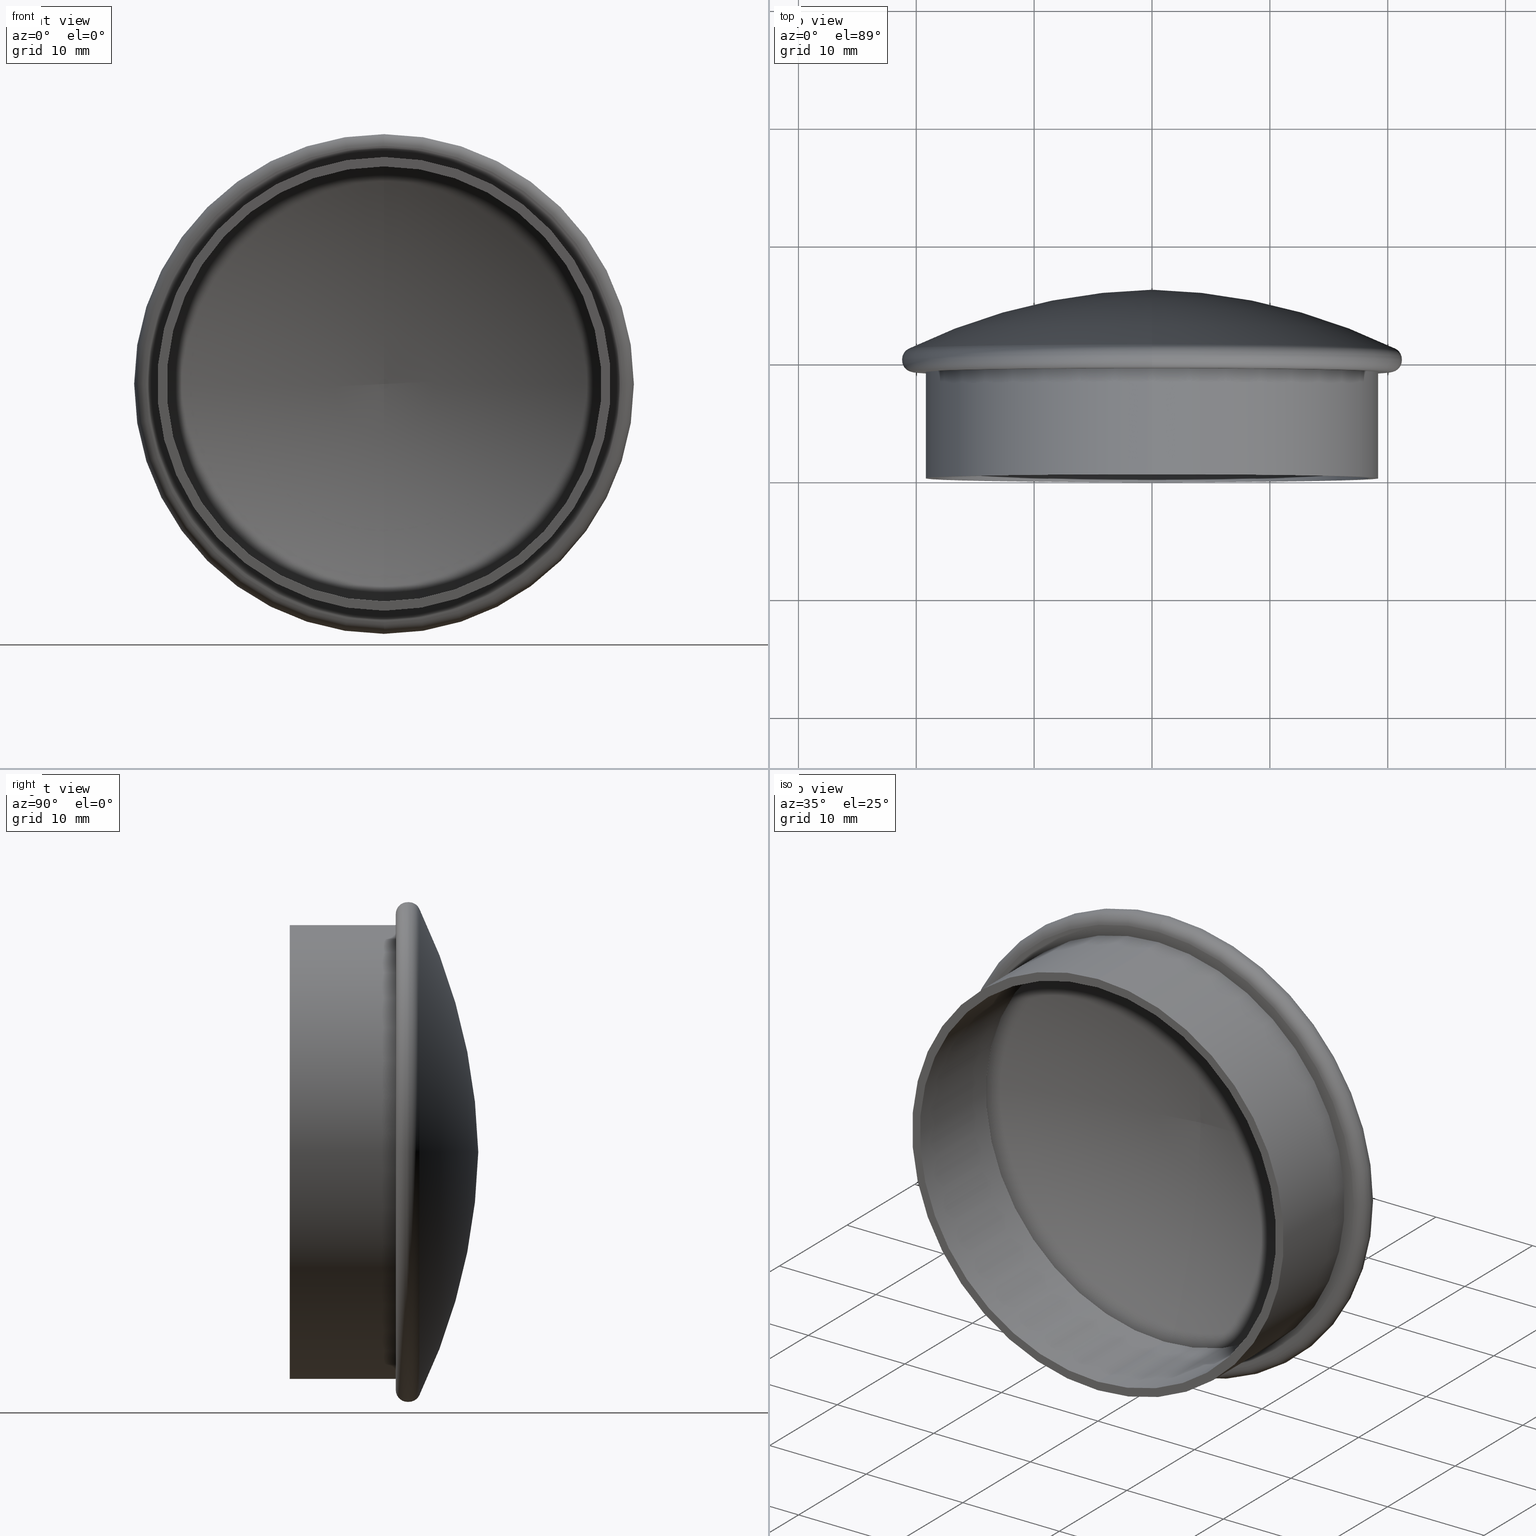
[diagram: canonical four-view strip — front | top / right | iso, engineering-drawing reading convention]
A machine part, canonical four-view strip (front | top / right | iso — engineering-drawing reading convention). The complete STEP part file that produces these views, byte-faithful:
ISO-10303-21;
HEADER;
FILE_DESCRIPTION (( 'STEP AP214' ),
    '1' );
FILE_NAME ('���. KRT605.STEP',
    '2014-06-04T12:21:57',
    ( '' ),
    ( '' ),
    'SwSTEP 2.0',
    'SolidWorks 2014',
    '' );
FILE_SCHEMA (( 'AUTOMOTIVE_DESIGN' ));
ENDSEC;

DATA;
#1 = PRODUCT_DEFINITION ( 'UNKNOWN', '', #381, #132 ) ;
#2 = CIRCLE ( 'NONE', #289, 50.00000000000000000 ) ;
#3 = CARTESIAN_POINT ( 'NONE',  ( 0.0000000000000000000, 9.799999999999998900, 0.0000000000000000000 ) ) ;
#4 = EDGE_CURVE ( 'NONE', #509, #492, #363, .T. ) ;
#5 = CARTESIAN_POINT ( 'NONE',  ( 0.0000000000000000000, 10.00000000000000000, -20.19999999999999900 ) ) ;
#6 = DIRECTION ( 'NONE',  ( 0.0000000000000000000, 0.0000000000000000000, -1.000000000000000000 ) ) ;
#7 = SURFACE_STYLE_FILL_AREA ( #149 ) ;
#8 = DIRECTION ( 'NONE',  ( -0.0000000000000000000, -1.000000000000000000, -0.0000000000000000000 ) ) ;
#9 = FACE_BOUND ( 'NONE', #166, .T. ) ;
#10 = DIRECTION ( 'NONE',  ( -0.0000000000000000000, -1.000000000000000000, -0.0000000000000000000 ) ) ;
#11 = DIRECTION ( 'NONE',  ( -0.0000000000000000000, -1.000000000000000000, -0.0000000000000000000 ) ) ;
#12 = STYLED_ITEM ( 'NONE', ( #543 ), #525 ) ;
#13 = DIRECTION ( 'NONE',  ( 0.0000000000000000000, 0.0000000000000000000, -1.000000000000000000 ) ) ;
#14 = DIRECTION ( 'NONE',  ( 0.0000000000000000000, 0.0000000000000000000, -1.000000000000000000 ) ) ;
#15 = SURFACE_SIDE_STYLE ('',( #451 ) ) ;
#16 = DIRECTION ( 'NONE',  ( -0.0000000000000000000, -1.000000000000000000, -0.0000000000000000000 ) ) ;
#17 = ORIENTED_EDGE ( 'NONE', *, *, #348, .T. ) ;
#18 = DIRECTION ( 'NONE',  ( 0.0000000000000000000, 0.0000000000000000000, -1.000000000000000000 ) ) ;
#19 = DIRECTION ( 'NONE',  ( 0.0000000000000000000, 0.0000000000000000000, -1.000000000000000000 ) ) ;
#20 = CIRCLE ( 'NONE', #94, 0.1999999999999987900 ) ;
#21 = CIRCLE ( 'NONE', #288, 0.2000000000000022600 ) ;
#22 = ORIENTED_EDGE ( 'NONE', *, *, #514, .T. ) ;
#23 = AXIS2_PLACEMENT_3D ( 'NONE', #241, #344, #445 ) ;
#24 = EDGE_LOOP ( 'NONE', ( #487, #91, #367 ) ) ;
#25 = ADVANCED_FACE ( 'NONE', ( #211 ), #331, .F. ) ;
#26 = AXIS2_PLACEMENT_3D ( 'NONE', #237, #254, #453 ) ;
#27 = TOROIDAL_SURFACE ( 'NONE', #322, -1.187099905823745500, 50.00000000000000000 ) ;
#28 = ORIENTED_EDGE ( 'NONE', *, *, #542, .F. ) ;
#29 = EDGE_CURVE ( 'NONE', #497, #536, #591, .T. ) ;
#30 = ADVANCED_FACE ( 'NONE', ( #134 ), #219, .F. ) ;
#31 = DIRECTION ( 'NONE',  ( 0.0000000000000000000, 0.0000000000000000000, -1.000000000000000000 ) ) ;
#32 = AXIS2_PLACEMENT_3D ( 'NONE', #550, #243, #136 ) ;
#33 = CYLINDRICAL_SURFACE ( 'NONE', #390, 19.25000000000000400 ) ;
#34 = ADVANCED_FACE ( 'NONE', ( #73 ), #454, .T. ) ;
#35 = VERTEX_POINT ( 'NONE', #44 ) ;
#36 = EDGE_LOOP ( 'NONE', ( #170, #183 ) ) ;
#37 = FACE_OUTER_BOUND ( 'NONE', #588, .T. ) ;
#38 = ORIENTED_EDGE ( 'NONE', *, *, #542, .T. ) ;
#39 = EDGE_LOOP ( 'NONE', ( #449, #223, #22, #139 ) ) ;
#40 = AXIS2_PLACEMENT_3D ( 'NONE', #256, #404, #6 ) ;
#41 = DIRECTION ( 'NONE',  ( -0.0000000000000000000, -1.000000000000000000, -0.0000000000000000000 ) ) ;
#42 = CARTESIAN_POINT ( 'NONE',  ( 0.0000000000000000000, 9.000000000000000000, 0.0000000000000000000 ) ) ;
#43 = CIRCLE ( 'NONE', #488, 49.20000000000000300 ) ;
#44 = CARTESIAN_POINT ( 'NONE',  ( 0.0000000000000000000, 9.000000000000000000, -20.19999999999999200 ) ) ;
#45 = EDGE_CURVE ( 'NONE', #120, #131, #408, .T. ) ;
#46 = ORIENTED_EDGE ( 'NONE', *, *, #191, .F. ) ;
#47 = DIRECTION ( 'NONE',  ( 0.0000000000000000000, 0.0000000000000000000, -1.000000000000000000 ) ) ;
#48 = CARTESIAN_POINT ( 'NONE',  ( 2.259473344426867500E-015, 9.799999999999998900, 18.45000000000000300 ) ) ;
#49 = DIRECTION ( 'NONE',  ( -0.0000000000000000000, -1.000000000000000000, -0.0000000000000000000 ) ) ;
#50 = AXIS2_PLACEMENT_3D ( 'NONE', #520, #508, #570 ) ;
#51 = AXIS2_PLACEMENT_3D ( 'NONE', #377, #277, #481 ) ;
#52 = FACE_OUTER_BOUND ( 'NONE', #39, .T. ) ;
#53 = DIRECTION ( 'NONE',  ( -0.0000000000000000000, -1.000000000000000000, -0.0000000000000000000 ) ) ;
#54 = LINE ( 'NONE', #250, #581 ) ;
#55 = ORIENTED_EDGE ( 'NONE', *, *, #514, .F. ) ;
#56 = ORIENTED_EDGE ( 'NONE', *, *, #4, .F. ) ;
#57 = CARTESIAN_POINT ( 'NONE',  ( 0.0000000000000000000, 16.00000000000000000, 0.0000000000000000000 ) ) ;
#58 = DIRECTION ( 'NONE',  ( 1.000000000000000000, 0.0000000000000000000, -1.224646799147353200E-016 ) ) ;
#59 = DIRECTION ( 'NONE',  ( 0.0000000000000000000, 0.0000000000000000000, -1.000000000000000000 ) ) ;
#60 = ORIENTED_EDGE ( 'NONE', *, *, #75, .T. ) ;
#61 = EDGE_CURVE ( 'NONE', #637, #88, #2, .T. ) ;
#62 = DIRECTION ( 'NONE',  ( -0.0000000000000000000, -1.000000000000000000, -0.0000000000000000000 ) ) ;
#63 = DIRECTION ( 'NONE',  ( 0.0000000000000000000, 0.0000000000000000000, -1.000000000000000000 ) ) ;
#64 = SURFACE_STYLE_USAGE ( .BOTH. , #15 ) ;
#65 = FACE_OUTER_BOUND ( 'NONE', #200, .T. ) ;
#66 = CARTESIAN_POINT ( 'NONE',  ( 0.0000000000000000000, 10.00000000000000000, 0.0000000000000000000 ) ) ;
#67 = DIRECTION ( 'NONE',  ( -0.0000000000000000000, -1.000000000000000000, -0.0000000000000000000 ) ) ;
#68 = DIRECTION ( 'NONE',  ( 0.0000000000000000000, 0.0000000000000000000, -1.000000000000000000 ) ) ;
#69 = EDGE_LOOP ( 'NONE', ( #410, #365, #164, #46 ) ) ;
#70 = FACE_OUTER_BOUND ( 'NONE', #279, .T. ) ;
#71 = CARTESIAN_POINT ( 'NONE',  ( 0.0000000000000000000, 0.0000000000000000000, -19.25000000000000400 ) ) ;
#72 = FACE_OUTER_BOUND ( 'NONE', #638, .T. ) ;
#73 = FACE_OUTER_BOUND ( 'NONE', #379, .T. ) ;
#74 = ORIENTED_EDGE ( 'NONE', *, *, #593, .F. ) ;
#75 = EDGE_CURVE ( 'NONE', #507, #308, #137, .T. ) ;
#76 = CARTESIAN_POINT ( 'NONE',  ( 0.0000000000000000000, 10.00000000000000700, 0.0000000000000000000 ) ) ;
#77 = VERTEX_POINT ( 'NONE', #234 ) ;
#78 = ADVANCED_FACE ( 'NONE', ( #226 ), #27, .T. ) ;
#79 = DIRECTION ( 'NONE',  ( -0.0000000000000000000, -1.000000000000000000, -0.0000000000000000000 ) ) ;
#80 = AXIS2_PLACEMENT_3D ( 'NONE', #369, #604, #415 ) ;
#81 = EDGE_CURVE ( 'NONE', #77, #270, #619, .T. ) ;
#82 = ADVANCED_FACE ( 'NONE', ( #276, #9 ), #157, .T. ) ;
#83 = FACE_OUTER_BOUND ( 'NONE', #400, .T. ) ;
#84 = CARTESIAN_POINT ( 'NONE',  ( 0.0000000000000000000, 15.19977076228066400, -6.505213034913026600E-016 ) ) ;
#85 = VERTEX_POINT ( 'NONE', #528 ) ;
#86 = ORIENTED_EDGE ( 'NONE', *, *, #375, .T. ) ;
#87 = VECTOR ( 'NONE', #49, 1000.000000000000000 ) ;
#88 = VERTEX_POINT ( 'NONE', #617 ) ;
#89 = CYLINDRICAL_SURFACE ( 'NONE', #586, 21.19999999999999900 ) ;
#90 = AXIS2_PLACEMENT_3D ( 'NONE', #512, #194, #261 ) ;
#91 = ORIENTED_EDGE ( 'NONE', *, *, #593, .T. ) ;
#92 = ORIENTED_EDGE ( 'NONE', *, *, #335, .F. ) ;
#93 = DIRECTION ( 'NONE',  ( -0.0000000000000000000, -1.000000000000000000, -0.0000000000000000000 ) ) ;
#94 = AXIS2_PLACEMENT_3D ( 'NONE', #247, #58, #461 ) ;
#95 = CARTESIAN_POINT ( 'NONE',  ( 0.0000000000000000000, 9.000000000000000000, 0.0000000000000000000 ) ) ;
#96 = LINE ( 'NONE', #603, #185 ) ;
#97 = VECTOR ( 'NONE', #428, 1000.000000000000000 ) ;
#98 = DIRECTION ( 'NONE',  ( 0.0000000000000000000, 0.0000000000000000000, -1.000000000000000000 ) ) ;
#99 = VERTEX_POINT ( 'NONE', #517 ) ;
#100 = EDGE_CURVE ( 'NONE', #248, #85, #154, .T. ) ;
#101 = VERTEX_POINT ( 'NONE', #366 ) ;
#102 = DIRECTION ( 'NONE',  ( -0.0000000000000000000, -1.000000000000000000, -0.0000000000000000000 ) ) ;
#103 = DIRECTION ( 'NONE',  ( -1.000000000000000000, 0.0000000000000000000, 0.0000000000000000000 ) ) ;
#104 = DIRECTION ( 'NONE',  ( -0.0000000000000000000, -1.000000000000000000, -0.0000000000000000000 ) ) ;
#105 = AXIS2_PLACEMENT_3D ( 'NONE', #608, #102, #309 ) ;
#106 = CARTESIAN_POINT ( 'NONE',  ( 0.0000000000000000000, 9.000000000000000000, 0.0000000000000000000 ) ) ;
#107 = CARTESIAN_POINT ( 'NONE',  ( 0.0000000000000000000, 0.0000000000000000000, 0.0000000000000000000 ) ) ;
#108 = ORIENTED_EDGE ( 'NONE', *, *, #629, .T. ) ;
#109 = AXIS2_PLACEMENT_3D ( 'NONE', #472, #264, #14 ) ;
#110 = CARTESIAN_POINT ( 'NONE',  ( 2.259473344426867500E-015, 0.0000000000000000000, 18.45000000000000300 ) ) ;
#111 = ORIENTED_EDGE ( 'NONE', *, *, #283, .F. ) ;
#112 = DIRECTION ( 'NONE',  ( -0.0000000000000000000, -1.000000000000000000, -0.0000000000000000000 ) ) ;
#113 = DIRECTION ( 'NONE',  ( 0.0000000000000000000, 0.0000000000000000000, 1.000000000000000000 ) ) ;
#114 = CARTESIAN_POINT ( 'NONE',  ( 2.596251214192388800E-015, 0.0000000000000000000, 21.19999999999999900 ) ) ;
#115 =( NAMED_UNIT ( * ) PLANE_ANGLE_UNIT ( ) SI_UNIT ( $, .RADIAN. ) );
#116 = VECTOR ( 'NONE', #530, 1000.000000000000000 ) ;
#117 = VERTEX_POINT ( 'NONE', #572 ) ;
#118 = DIRECTION ( 'NONE',  ( -0.0000000000000000000, -1.000000000000000000, -0.0000000000000000000 ) ) ;
#119 = AXIS2_PLACEMENT_3D ( 'NONE', #564, #53, #98 ) ;
#120 = VERTEX_POINT ( 'NONE', #314 ) ;
#121 = ORIENTED_EDGE ( 'NONE', *, *, #546, .F. ) ;
#122 =( NAMED_UNIT ( * ) SI_UNIT ( $, .STERADIAN. ) SOLID_ANGLE_UNIT ( ) );
#123 = COLOUR_RGB ( '',0.7921568627450980000, 0.8196078431372548800, 0.9333333333333333500 ) ;
#124 = PRESENTATION_STYLE_ASSIGNMENT (( #64 ) ) ;
#125 = DIRECTION ( 'NONE',  ( -0.0000000000000000000, -1.000000000000000000, -0.0000000000000000000 ) ) ;
#126 = EDGE_CURVE ( 'NONE', #228, #101, #372, .T. ) ;
#127 = ORIENTED_EDGE ( 'NONE', *, *, #75, .F. ) ;
#128 = ADVANCED_FACE ( 'NONE', ( #72 ), #385, .T. ) ;
#129 = AXIS2_PLACEMENT_3D ( 'NONE', #420, #313, #59 ) ;
#130 = CIRCLE ( 'NONE', #534, 21.19999999999999900 ) ;
#131 = VERTEX_POINT ( 'NONE', #148 ) ;
#132 = PRODUCT_DEFINITION_CONTEXT ( 'detailed design', #607, 'design' ) ;
#133 = VECTOR ( 'NONE', #343, 1000.000000000000000 ) ;
#134 = FACE_OUTER_BOUND ( 'NONE', #187, .T. ) ;
#135 = DIRECTION ( 'NONE',  ( 0.0000000000000000000, 0.0000000000000000000, -1.000000000000000000 ) ) ;
#136 = DIRECTION ( 'NONE',  ( 0.0000000000000000000, 0.0000000000000000000, -1.000000000000000000 ) ) ;
#137 = CIRCLE ( 'NONE', #569, 18.45000000000000300 ) ;
#138 = CARTESIAN_POINT ( 'NONE',  ( 2.357445088358655500E-015, 0.0000000000000000000, 19.25000000000000400 ) ) ;
#139 = ORIENTED_EDGE ( 'NONE', *, *, #531, .T. ) ;
#140 = DIRECTION ( 'NONE',  ( 0.0000000000000000000, 0.0000000000000000000, -1.000000000000000000 ) ) ;
#141 = VERTEX_POINT ( 'NONE', #511 ) ;
#142 = DIRECTION ( 'NONE',  ( 0.0000000000000000000, 0.0000000000000000000, -1.000000000000000000 ) ) ;
#143 = AXIS2_PLACEMENT_3D ( 'NONE', #300, #501, #179 ) ;
#144 = MANIFOLD_SOLID_BREP ( '��������1', #338 ) ;
#145 = DIRECTION ( 'NONE',  ( -0.0000000000000000000, -1.000000000000000000, -0.0000000000000000000 ) ) ;
#146 = DIRECTION ( 'NONE',  ( 0.0000000000000000000, 0.0000000000000000000, -1.000000000000000000 ) ) ;
#147 = DIRECTION ( 'NONE',  ( 0.0000000000000000000, 0.0000000000000000000, -1.000000000000000000 ) ) ;
#148 = CARTESIAN_POINT ( 'NONE',  ( 2.357445088358655500E-015, 9.000000000000000000, 19.25000000000000400 ) ) ;
#149 = FILL_AREA_STYLE ('',( #153 ) ) ;
#150 = FILL_AREA_STYLE ('',( #360 ) ) ;
#151 = CARTESIAN_POINT ( 'NONE',  ( -1.453778099935174200E-016, -33.98590595171396700, -1.187099905823745500 ) ) ;
#152 = DIRECTION ( 'NONE',  ( -0.0000000000000000000, -1.000000000000000000, -0.0000000000000000000 ) ) ;
#153 = FILL_AREA_STYLE_COLOUR ( '', #123 ) ;
#154 = CIRCLE ( 'NONE', #394, 19.25000000000000400 ) ;
#155 = AXIS2_PLACEMENT_3D ( 'NONE', #468, #465, #324 ) ;
#156 = SURFACE_STYLE_USAGE ( .BOTH. , #524 ) ;
#157 = PLANE ( 'NONE',  #342 ) ;
#158 = ADVANCED_FACE ( 'NONE', ( #304 ), #631, .F. ) ;
#159 = CARTESIAN_POINT ( 'NONE',  ( 0.0000000000000000000, 0.0000000000000000000, -21.19999999999999900 ) ) ;
#160 = CIRCLE ( 'NONE', #358, 19.25000000000000400 ) ;
#161 = ORIENTED_EDGE ( 'NONE', *, *, #126, .F. ) ;
#162 = ADVANCED_FACE ( 'NONE', ( #491 ), #392, .F. ) ;
#163 = UNCERTAINTY_MEASURE_WITH_UNIT (LENGTH_MEASURE( 1.000000000000000100E-005 ), #416, 'distance_accuracy_value', 'NONE');
#164 = ORIENTED_EDGE ( 'NONE', *, *, #425, .T. ) ;
#165 = ORIENTED_EDGE ( 'NONE', *, *, #448, .T. ) ;
#166 = EDGE_LOOP ( 'NONE', ( #610, #92 ) ) ;
#167 = ADVANCED_FACE ( 'NONE', ( #351 ), #33, .T. ) ;
#168 = EDGE_CURVE ( 'NONE', #101, #228, #186, .T. ) ;
#169 = ORIENTED_EDGE ( 'NONE', *, *, #546, .T. ) ;
#170 = ORIENTED_EDGE ( 'NONE', *, *, #621, .F. ) ;
#171 = ORIENTED_EDGE ( 'NONE', *, *, #335, .T. ) ;
#172 = AXIS2_PLACEMENT_3D ( 'NONE', #311, #10, #13 ) ;
#173 = TOROIDAL_SURFACE ( 'NONE', #567, 20.19999999999999900, 1.000000000000000900 ) ;
#174 = DIRECTION ( 'NONE',  ( 0.0000000000000000000, 0.0000000000000000000, -1.000000000000000000 ) ) ;
#175 = TOROIDAL_SURFACE ( 'NONE', #405, -1.187099905823745500, 50.00000000000000000 ) ;
#176 = CARTESIAN_POINT ( 'NONE',  ( 0.0000000000000000000, -33.98590595171396700, 1.187099905823745500 ) ) ;
#177 = VERTEX_POINT ( 'NONE', #84 ) ;
#178 = EDGE_CURVE ( 'NONE', #637, #99, #329, .T. ) ;
#179 = DIRECTION ( 'NONE',  ( 0.0000000000000000000, 0.0000000000000000000, -1.000000000000000000 ) ) ;
#180 = FACE_BOUND ( 'NONE', #577, .T. ) ;
#181 = EDGE_LOOP ( 'NONE', ( #502, #190, #266, #592 ) ) ;
#182 = DIRECTION ( 'NONE',  ( -0.0000000000000000000, -1.000000000000000000, -0.0000000000000000000 ) ) ;
#183 = ORIENTED_EDGE ( 'NONE', *, *, #629, .F. ) ;
#184 = AXIS2_PLACEMENT_3D ( 'NONE', #192, #355, #142 ) ;
#185 = VECTOR ( 'NONE', #62, 1000.000000000000000 ) ;
#186 = CIRCLE ( 'NONE', #496, 20.28729428532989200 ) ;
#187 = EDGE_LOOP ( 'NONE', ( #215, #165, #538, #55 ) ) ;
#188 = CARTESIAN_POINT ( 'NONE',  ( 0.0000000000000000000, 9.799999999999998900, -20.19999999999999900 ) ) ;
#189 = CARTESIAN_POINT ( 'NONE',  ( 0.0000000000000000000, 0.0000000000000000000, -20.40000000000000200 ) ) ;
#190 = ORIENTED_EDGE ( 'NONE', *, *, #531, .F. ) ;
#191 = EDGE_CURVE ( 'NONE', #492, #509, #287, .T. ) ;
#192 = CARTESIAN_POINT ( 'NONE',  ( 0.0000000000000000000, -33.98590595171396700, 0.0000000000000000000 ) ) ;
#193 = CARTESIAN_POINT ( 'NONE',  ( 2.596251214192388800E-015, 10.00000000000000700, 21.19999999999999900 ) ) ;
#194 = DIRECTION ( 'NONE',  ( -0.0000000000000000000, -1.000000000000000000, -0.0000000000000000000 ) ) ;
#195 = CARTESIAN_POINT ( 'NONE',  ( 0.0000000000000000000, 10.10028188096572100, -21.19999999999999900 ) ) ;
#196 = DIRECTION ( 'NONE',  ( -0.0000000000000000000, -1.000000000000000000, -0.0000000000000000000 ) ) ;
#197 = TOROIDAL_SURFACE ( 'NONE', #399, 20.19999999999999900, 0.2000000000000004300 ) ;
#198 = AXIS2_PLACEMENT_3D ( 'NONE', #396, #182, #140 ) ;
#199 = DIRECTION ( 'NONE',  ( -0.0000000000000000000, -1.000000000000000000, -0.0000000000000000000 ) ) ;
#200 = EDGE_LOOP ( 'NONE', ( #368, #127, #169, #500 ) ) ;
#201 = APPLICATION_PROTOCOL_DEFINITION ( 'draft international standard', 'automotive_design', 1998, #607 ) ;
#202 = DIRECTION ( 'NONE',  ( 0.0000000000000000000, 0.0000000000000000000, -1.000000000000000000 ) ) ;
#203 = APPLICATION_CONTEXT ( 'automotive_design' ) ;
#204 = DIRECTION ( 'NONE',  ( 0.0000000000000000000, 0.0000000000000000000, -1.000000000000000000 ) ) ;
#205 = ORIENTED_EDGE ( 'NONE', *, *, #411, .T. ) ;
#206 = EDGE_CURVE ( 'NONE', #131, #248, #54, .T. ) ;
#207 = DIRECTION ( 'NONE',  ( -1.000000000000000000, 0.0000000000000000000, 0.0000000000000000000 ) ) ;
#208 = CIRCLE ( 'NONE', #613, 1.000000000000000900 ) ;
#209 = CARTESIAN_POINT ( 'NONE',  ( 19.25000000000000400, 9.000000000000000000, 0.0000000000000000000 ) ) ;
#210 = ADVANCED_FACE ( 'NONE', ( #422 ), #175, .T. ) ;
#211 = FACE_OUTER_BOUND ( 'NONE', #260, .T. ) ;
#212 = AXIS2_PLACEMENT_3D ( 'NONE', #268, #471, #19 ) ;
#213 = CARTESIAN_POINT ( 'NONE',  ( 0.0000000000000000000, 9.799999999999998900, 0.0000000000000000000 ) ) ;
#214 = ORIENTED_EDGE ( 'NONE', *, *, #293, .T. ) ;
#215 = ORIENTED_EDGE ( 'NONE', *, *, #81, .F. ) ;
#216 = CARTESIAN_POINT ( 'NONE',  ( 0.0000000000000000000, 10.28022550477257900, 0.0000000000000000000 ) ) ;
#217 = CARTESIAN_POINT ( 'NONE',  ( 0.0000000000000000000, -33.98590595171396700, 0.0000000000000000000 ) ) ;
#218 = FACE_OUTER_BOUND ( 'NONE', #238, .T. ) ;
#219 = CYLINDRICAL_SURFACE ( 'NONE', #281, 20.40000000000000200 ) ;
#220 = EDGE_LOOP ( 'NONE', ( #506, #231 ) ) ;
#221 = EDGE_CURVE ( 'NONE', #99, #88, #258, .T. ) ;
#222 = DIRECTION ( 'NONE',  ( -0.0000000000000000000, -1.000000000000000000, -0.0000000000000000000 ) ) ;
#223 = ORIENTED_EDGE ( 'NONE', *, *, #310, .F. ) ;
#224 = AXIS2_PLACEMENT_3D ( 'NONE', #66, #522, #202 ) ;
#225 = CIRCLE ( 'NONE', #284, 49.20000000000000300 ) ;
#226 = FACE_OUTER_BOUND ( 'NONE', #601, .T. ) ;
#227 = EDGE_LOOP ( 'NONE', ( #373, #214, #374, #635 ) ) ;
#228 = VERTEX_POINT ( 'NONE', #518 ) ;
#229 = AXIS2_PLACEMENT_3D ( 'NONE', #286, #41, #441 ) ;
#230 = CARTESIAN_POINT ( 'NONE',  ( 0.0000000000000000000, 9.799999999999998900, 0.0000000000000000000 ) ) ;
#231 = ORIENTED_EDGE ( 'NONE', *, *, #242, .T. ) ;
#232 = DIRECTION ( 'NONE',  ( -0.0000000000000000000, -1.000000000000000000, -0.0000000000000000000 ) ) ;
#233 = EDGE_CURVE ( 'NONE', #308, #426, #513, .T. ) ;
#234 = CARTESIAN_POINT ( 'NONE',  ( 2.498279470260600700E-015, 10.10028188096572100, 20.40000000000000200 ) ) ;
#235 = CIRCLE ( 'NONE', #393, 20.19999999999999200 ) ;
#236 = ORIENTED_EDGE ( 'NONE', *, *, #168, .F. ) ;
#237 = CARTESIAN_POINT ( 'NONE',  ( 0.0000000000000000000, 10.10028188096572100, 0.0000000000000000000 ) ) ;
#238 = EDGE_LOOP ( 'NONE', ( #495, #38, #340, #434 ) ) ;
#239 = ORIENTED_EDGE ( 'NONE', *, *, #326, .F. ) ;
#240 = MECHANICAL_DESIGN_GEOMETRIC_PRESENTATION_REPRESENTATION (  '', ( #12 ), #438 ) ;
#241 = CARTESIAN_POINT ( 'NONE',  ( 0.0000000000000000000, 10.00000000000000000, 0.0000000000000000000 ) ) ;
#242 = EDGE_CURVE ( 'NONE', #499, #35, #235, .T. ) ;
#243 = DIRECTION ( 'NONE',  ( -0.0000000000000000000, -1.000000000000000000, -0.0000000000000000000 ) ) ;
#244 = DIRECTION ( 'NONE',  ( 1.000000000000000000, 0.0000000000000000000, -1.224646799147353200E-016 ) ) ;
#245 = CIRCLE ( 'NONE', #249, 0.1999999999999987900 ) ;
#246 = CARTESIAN_POINT ( 'NONE',  ( 0.0000000000000000000, 10.10028188096572100, -20.19999999999999900 ) ) ;
#247 = CARTESIAN_POINT ( 'NONE',  ( 2.473786534277653200E-015, 10.10028188096572100, 20.19999999999999900 ) ) ;
#248 = VERTEX_POINT ( 'NONE', #138 ) ;
#249 = AXIS2_PLACEMENT_3D ( 'NONE', #318, #599, #316 ) ;
#250 = CARTESIAN_POINT ( 'NONE',  ( 2.357445088358655500E-015, 0.0000000000000000000, 19.25000000000000400 ) ) ;
#251 = DIRECTION ( 'NONE',  ( 0.0000000000000000000, 0.0000000000000000000, -1.000000000000000000 ) ) ;
#252 = EDGE_LOOP ( 'NONE', ( #403, #598 ) ) ;
#253 = DIRECTION ( 'NONE',  ( 0.0000000000000000000, 0.0000000000000000000, 1.000000000000000000 ) ) ;
#254 = DIRECTION ( 'NONE',  ( -0.0000000000000000000, -1.000000000000000000, -0.0000000000000000000 ) ) ;
#255 = AXIS2_PLACEMENT_3D ( 'NONE', #556, #244, #349 ) ;
#256 = CARTESIAN_POINT ( 'NONE',  ( 0.0000000000000000000, 0.0000000000000000000, 0.0000000000000000000 ) ) ;
#257 = DIRECTION ( 'NONE',  ( 1.000000000000000000, 0.0000000000000000000, 0.0000000000000000000 ) ) ;
#258 = CIRCLE ( 'NONE', #90, 20.63647142664946100 ) ;
#259 = DIRECTION ( 'NONE',  ( 0.0000000000000000000, 0.0000000000000000000, -1.000000000000000000 ) ) ;
#260 = EDGE_LOOP ( 'NONE', ( #274, #337, #352, #239 ) ) ;
#261 = DIRECTION ( 'NONE',  ( 0.0000000000000000000, 0.0000000000000000000, -1.000000000000000000 ) ) ;
#262 = ORIENTED_EDGE ( 'NONE', *, *, #206, .T. ) ;
#263 = CARTESIAN_POINT ( 'NONE',  ( 0.0000000000000000000, 10.00000000000000200, -20.40000000000000200 ) ) ;
#264 = DIRECTION ( 'NONE',  ( -0.0000000000000000000, -1.000000000000000000, -0.0000000000000000000 ) ) ;
#265 = DIRECTION ( 'NONE',  ( -1.224646799147353200E-016, 0.0000000000000000000, -1.000000000000000000 ) ) ;
#266 = ORIENTED_EDGE ( 'NONE', *, *, #326, .T. ) ;
#267 = EDGE_CURVE ( 'NONE', #85, #248, #541, .T. ) ;
#268 = CARTESIAN_POINT ( 'NONE',  ( 19.25000000000000400, 9.799999999999998900, 0.0000000000000000000 ) ) ;
#269 = CIRCLE ( 'NONE', #255, 1.000000000000000900 ) ;
#270 = VERTEX_POINT ( 'NONE', #294 ) ;
#271 = ADVANCED_FACE ( 'NONE', ( #575 ), #437, .T. ) ;
#272 = ORIENTED_EDGE ( 'NONE', *, *, #178, .F. ) ;
#273 = UNCERTAINTY_MEASURE_WITH_UNIT (LENGTH_MEASURE( 1.000000000000000100E-005 ), #364, 'distance_accuracy_value', 'NONE');
#274 = ORIENTED_EDGE ( 'NONE', *, *, #29, .F. ) ;
#275 = AXIS2_PLACEMENT_3D ( 'NONE', #480, #118, #475 ) ;
#276 = FACE_OUTER_BOUND ( 'NONE', #220, .T. ) ;
#277 = DIRECTION ( 'NONE',  ( -0.0000000000000000000, -1.000000000000000000, -0.0000000000000000000 ) ) ;
#278 = ORIENTED_EDGE ( 'NONE', *, *, #539, .F. ) ;
#279 = EDGE_LOOP ( 'NONE', ( #609, #236, #298, #529 ) ) ;
#280 = EDGE_LOOP ( 'NONE', ( #376, #301, #622, #634 ) ) ;
#281 = AXIS2_PLACEMENT_3D ( 'NONE', #292, #232, #135 ) ;
#282 = TOROIDAL_SURFACE ( 'NONE', #224, 20.19999999999999900, 1.000000000000000900 ) ;
#283 = EDGE_CURVE ( 'NONE', #308, #507, #554, .T. ) ;
#284 = AXIS2_PLACEMENT_3D ( 'NONE', #305, #459, #303 ) ;
#285 = AXIS2_PLACEMENT_3D ( 'NONE', #151, #563, #265 ) ;
#286 = CARTESIAN_POINT ( 'NONE',  ( 0.0000000000000000000, 9.000000000000000000, 0.0000000000000000000 ) ) ;
#287 = CIRCLE ( 'NONE', #105, 21.19999999999999900 ) ;
#288 = AXIS2_PLACEMENT_3D ( 'NONE', #5, #103, #477 ) ;
#289 = AXIS2_PLACEMENT_3D ( 'NONE', #176, #544, #594 ) ;
#290 = ORIENTED_EDGE ( 'NONE', *, *, #168, .T. ) ;
#291 = DIRECTION ( 'NONE',  ( 0.0000000000000000000, 0.0000000000000000000, -1.000000000000000000 ) ) ;
#292 = CARTESIAN_POINT ( 'NONE',  ( 0.0000000000000000000, 0.0000000000000000000, 0.0000000000000000000 ) ) ;
#293 = EDGE_CURVE ( 'NONE', #547, #499, #269, .T. ) ;
#294 = CARTESIAN_POINT ( 'NONE',  ( 0.0000000000000000000, 10.10028188096572100, -20.40000000000000200 ) ) ;
#295 = FACE_OUTER_BOUND ( 'NONE', #482, .T. ) ;
#296 = DIRECTION ( 'NONE',  ( -0.0000000000000000000, -1.000000000000000000, -0.0000000000000000000 ) ) ;
#297 = DIRECTION ( 'NONE',  ( -0.0000000000000000000, -1.000000000000000000, -0.0000000000000000000 ) ) ;
#298 = ORIENTED_EDGE ( 'NONE', *, *, #539, .T. ) ;
#299 = AXIS2_PLACEMENT_3D ( 'NONE', #246, #406, #561 ) ;
#300 = CARTESIAN_POINT ( 'NONE',  ( 0.0000000000000000000, 10.10028188096572100, 0.0000000000000000000 ) ) ;
#301 = ORIENTED_EDGE ( 'NONE', *, *, #467, .T. ) ;
#302 = AXIS2_PLACEMENT_3D ( 'NONE', #395, #640, #639 ) ;
#303 = DIRECTION ( 'NONE',  ( 0.0000000000000000000, 0.0000000000000000000, 1.000000000000000000 ) ) ;
#304 = FACE_OUTER_BOUND ( 'NONE', #387, .T. ) ;
#305 = CARTESIAN_POINT ( 'NONE',  ( 0.0000000000000000000, -33.98590595171396700, 1.187099905823745500 ) ) ;
#306 = CARTESIAN_POINT ( 'NONE',  ( 2.486033002269127000E-015, 9.799999999999998900, 20.19999999999999900 ) ) ;
#307 =( LENGTH_UNIT ( ) NAMED_UNIT ( * ) SI_UNIT ( .MILLI., .METRE. ) );
#308 = VERTEX_POINT ( 'NONE', #48 ) ;
#309 = DIRECTION ( 'NONE',  ( 0.0000000000000000000, 0.0000000000000000000, -1.000000000000000000 ) ) ;
#310 = EDGE_CURVE ( 'NONE', #270, #77, #527, .T. ) ;
#311 = CARTESIAN_POINT ( 'NONE',  ( 0.0000000000000000000, 10.99999999999999600, 0.0000000000000000000 ) ) ;
#312 = ORIENTED_EDGE ( 'NONE', *, *, #267, .F. ) ;
#313 = DIRECTION ( 'NONE',  ( -0.0000000000000000000, -1.000000000000000000, -0.0000000000000000000 ) ) ;
#314 = CARTESIAN_POINT ( 'NONE',  ( 0.0000000000000000000, 9.000000000000000000, -19.25000000000000400 ) ) ;
#315 = VERTEX_POINT ( 'NONE', #188 ) ;
#316 = DIRECTION ( 'NONE',  ( 0.0000000000000000000, 0.0000000000000000000, 1.000000000000000000 ) ) ;
#317 = ORIENTED_EDGE ( 'NONE', *, *, #388, .T. ) ;
#318 = CARTESIAN_POINT ( 'NONE',  ( 0.0000000000000000000, 10.10028188096572100, -20.19999999999999900 ) ) ;
#319 = ORIENTED_EDGE ( 'NONE', *, *, #489, .T. ) ;
#320 = CARTESIAN_POINT ( 'NONE',  ( 0.0000000000000000000, 10.00000000000000000, -20.19999999999999900 ) ) ;
#321 = AXIS2_PLACEMENT_3D ( 'NONE', #413, #113, #257 ) ;
#322 = AXIS2_PLACEMENT_3D ( 'NONE', #636, #545, #446 ) ;
#323 = FACE_BOUND ( 'NONE', #36, .T. ) ;
#324 = DIRECTION ( 'NONE',  ( 0.0000000000000000000, 0.0000000000000000000, -1.000000000000000000 ) ) ;
#325 = DIRECTION ( 'NONE',  ( 1.000000000000000000, 0.0000000000000000000, -1.224646799147353200E-016 ) ) ;
#326 = EDGE_CURVE ( 'NONE', #536, #315, #21, .T. ) ;
#327 = EDGE_CURVE ( 'NONE', #141, #547, #130, .T. ) ;
#328 = LINE ( 'NONE', #189, #87 ) ;
#329 = CIRCLE ( 'NONE', #285, 50.00000000000000000 ) ;
#330 = DIRECTION ( 'NONE',  ( -0.0000000000000000000, -1.000000000000000000, -0.0000000000000000000 ) ) ;
#331 = TOROIDAL_SURFACE ( 'NONE', #332, 20.19999999999999900, 0.2000000000000008400 ) ;
#332 = AXIS2_PLACEMENT_3D ( 'NONE', #439, #145, #174 ) ;
#333 = ORIENTED_EDGE ( 'NONE', *, *, #348, .F. ) ;
#334 = TOROIDAL_SURFACE ( 'NONE', #23, 20.19999999999999900, 0.2000000000000008400 ) ;
#335 = EDGE_CURVE ( 'NONE', #131, #120, #160, .T. ) ;
#336 = ORIENTED_EDGE ( 'NONE', *, *, #425, .F. ) ;
#337 = ORIENTED_EDGE ( 'NONE', *, *, #462, .T. ) ;
#338 = CLOSED_SHELL ( 'NONE', ( #162, #579, #30, #25, #158, #78, #34, #431, #532, #628, #585, #167, #82, #483, #128, #271, #210, #616, #535, #383, #486, #423, #476 ) ) ;
#339 = CIRCLE ( 'NONE', #433, 20.19999999999999200 ) ;
#340 = ORIENTED_EDGE ( 'NONE', *, *, #327, .F. ) ;
#341 = LINE ( 'NONE', #159, #116 ) ;
#342 = AXIS2_PLACEMENT_3D ( 'NONE', #209, #370, #474 ) ;
#343 = DIRECTION ( 'NONE',  ( -0.0000000000000000000, -1.000000000000000000, -0.0000000000000000000 ) ) ;
#344 = DIRECTION ( 'NONE',  ( -0.0000000000000000000, -1.000000000000000000, -0.0000000000000000000 ) ) ;
#345 = DIRECTION ( 'NONE',  ( -0.0000000000000000000, -1.000000000000000000, -0.0000000000000000000 ) ) ;
#346 = DIRECTION ( 'NONE',  ( 0.0000000000000000000, 0.0000000000000000000, -1.000000000000000000 ) ) ;
#347 = DIRECTION ( 'NONE',  ( -0.0000000000000000000, -1.000000000000000000, -0.0000000000000000000 ) ) ;
#348 = EDGE_CURVE ( 'NONE', #120, #85, #505, .T. ) ;
#349 = DIRECTION ( 'NONE',  ( -1.224646799147353500E-016, 0.0000000000000000000, -1.000000000000000000 ) ) ;
#350 = FACE_OUTER_BOUND ( 'NONE', #493, .T. ) ;
#351 = FACE_OUTER_BOUND ( 'NONE', #417, .T. ) ;
#352 = ORIENTED_EDGE ( 'NONE', *, *, #430, .T. ) ;
#353 = EDGE_CURVE ( 'NONE', #315, #470, #562, .T. ) ;
#354 = DIRECTION ( 'NONE',  ( 0.0000000000000000000, 0.0000000000000000000, -1.000000000000000000 ) ) ;
#355 = DIRECTION ( 'NONE',  ( -0.0000000000000000000, -1.000000000000000000, -0.0000000000000000000 ) ) ;
#356 = APPLICATION_PROTOCOL_DEFINITION ( 'draft international standard', 'automotive_design', 1998, #203 ) ;
#357 = DIRECTION ( 'NONE',  ( 0.0000000000000000000, 0.0000000000000000000, -1.000000000000000000 ) ) ;
#358 = AXIS2_PLACEMENT_3D ( 'NONE', #42, #93, #555 ) ;
#359 = CARTESIAN_POINT ( 'NONE',  ( 2.596251214192388800E-015, 10.10028188096572100, 21.19999999999999900 ) ) ;
#360 = FILL_AREA_STYLE_COLOUR ( '', #590 ) ;
#361 = CIRCLE ( 'NONE', #50, 0.2000000000000022600 ) ;
#362 = DIRECTION ( 'NONE',  ( 0.0000000000000000000, 0.0000000000000000000, -1.000000000000000000 ) ) ;
#363 = CIRCLE ( 'NONE', #26, 21.19999999999999900 ) ;
#364 =( LENGTH_UNIT ( ) NAMED_UNIT ( * ) SI_UNIT ( .MILLI., .METRE. ) );
#365 = ORIENTED_EDGE ( 'NONE', *, *, #221, .T. ) ;
#366 = CARTESIAN_POINT ( 'NONE',  ( 0.0000000000000000000, 10.28022550477257900, -20.28729428532989200 ) ) ;
#367 = ORIENTED_EDGE ( 'NONE', *, *, #126, .T. ) ;
#368 = ORIENTED_EDGE ( 'NONE', *, *, #233, .F. ) ;
#369 = CARTESIAN_POINT ( 'NONE',  ( 0.0000000000000000000, 0.0000000000000000000, 0.0000000000000000000 ) ) ;
#370 = DIRECTION ( 'NONE',  ( 0.0000000000000000000, -1.000000000000000000, -0.0000000000000000000 ) ) ;
#371 = CIRCLE ( 'NONE', #460, 18.45000000000000300 ) ;
#372 = CIRCLE ( 'NONE', #382, 20.28729428532989200 ) ;
#373 = ORIENTED_EDGE ( 'NONE', *, *, #327, .T. ) ;
#374 = ORIENTED_EDGE ( 'NONE', *, *, #452, .F. ) ;
#375 = EDGE_CURVE ( 'NONE', #177, #101, #225, .T. ) ;
#376 = ORIENTED_EDGE ( 'NONE', *, *, #293, .F. ) ;
#377 = CARTESIAN_POINT ( 'NONE',  ( 0.0000000000000000000, 0.0000000000000000000, 0.0000000000000000000 ) ) ;
#378 = ORIENTED_EDGE ( 'NONE', *, *, #206, .F. ) ;
#379 = EDGE_LOOP ( 'NONE', ( #427, #205, #56, #336 ) ) ;
#380 = CARTESIAN_POINT ( 'NONE',  ( 0.0000000000000000000, 10.10028188096572100, 0.0000000000000000000 ) ) ;
#381 = PRODUCT_DEFINITION_FORMATION_WITH_SPECIFIED_SOURCE ( 'ANY', '', #450, .NOT_KNOWN. ) ;
#382 = AXIS2_PLACEMENT_3D ( 'NONE', #566, #67, #259 ) ;
#383 = ADVANCED_FACE ( 'NONE', ( #485 ), #334, .F. ) ;
#384 = CIRCLE ( 'NONE', #172, 20.63647142664946100 ) ;
#385 = CYLINDRICAL_SURFACE ( 'NONE', #444, 21.19999999999999900 ) ;
#386 = CARTESIAN_POINT ( 'NONE',  ( 0.0000000000000000000, 0.0000000000000000000, -18.45000000000000300 ) ) ;
#387 = EDGE_LOOP ( 'NONE', ( #111, #582, #108, #121 ) ) ;
#388 = EDGE_CURVE ( 'NONE', #509, #141, #341, .T. ) ;
#389 = ORIENTED_EDGE ( 'NONE', *, *, #467, .F. ) ;
#390 = AXIS2_PLACEMENT_3D ( 'NONE', #627, #125, #31 ) ;
#391 = CARTESIAN_POINT ( 'NONE',  ( 0.0000000000000000000, 10.00000000000000200, 0.0000000000000000000 ) ) ;
#392 = TOROIDAL_SURFACE ( 'NONE', #440, -1.187099905823745500, 49.20000000000000300 ) ;
#393 = AXIS2_PLACEMENT_3D ( 'NONE', #95, #296, #447 ) ;
#394 = AXIS2_PLACEMENT_3D ( 'NONE', #458, #196, #18 ) ;
#395 = CARTESIAN_POINT ( 'NONE',  ( 0.0000000000000000000, 10.10028188096572100, 0.0000000000000000000 ) ) ;
#396 = CARTESIAN_POINT ( 'NONE',  ( 0.0000000000000000000, 9.799999999999998900, 0.0000000000000000000 ) ) ;
#397 = CIRCLE ( 'NONE', #504, 1.000000000000000900 ) ;
#398 = DIRECTION ( 'NONE',  ( 0.0000000000000000000, 0.0000000000000000000, -1.000000000000000000 ) ) ;
#399 = AXIS2_PLACEMENT_3D ( 'NONE', #380, #533, #346 ) ;
#400 = EDGE_LOOP ( 'NONE', ( #74, #86, #290 ) ) ;
#401 = CARTESIAN_POINT ( 'NONE',  ( 0.0000000000000000000, 10.10028188096572100, 0.0000000000000000000 ) ) ;
#402 = DIRECTION ( 'NONE',  ( -0.0000000000000000000, -1.000000000000000000, -0.0000000000000000000 ) ) ;
#403 = ORIENTED_EDGE ( 'NONE', *, *, #353, .F. ) ;
#404 = DIRECTION ( 'NONE',  ( -0.0000000000000000000, -1.000000000000000000, -0.0000000000000000000 ) ) ;
#405 = AXIS2_PLACEMENT_3D ( 'NONE', #605, #8, #357 ) ;
#406 = DIRECTION ( 'NONE',  ( -1.000000000000000000, 0.0000000000000000000, 0.0000000000000000000 ) ) ;
#407 =( NAMED_UNIT ( * ) SI_UNIT ( $, .STERADIAN. ) SOLID_ANGLE_UNIT ( ) );
#408 = CIRCLE ( 'NONE', #229, 19.25000000000000400 ) ;
#409 = CARTESIAN_POINT ( 'NONE',  ( 0.0000000000000000000, 0.0000000000000000000, 0.0000000000000000000 ) ) ;
#410 = ORIENTED_EDGE ( 'NONE', *, *, #411, .F. ) ;
#411 = EDGE_CURVE ( 'NONE', #99, #492, #397, .T. ) ;
#412 = CARTESIAN_POINT ( 'NONE',  ( 0.0000000000000000000, 9.799999999999998900, -18.45000000000000300 ) ) ;
#413 = CARTESIAN_POINT ( 'NONE',  ( 0.0000000000000000000, 0.0000000000000000000, 0.0000000000000000000 ) ) ;
#414 = CARTESIAN_POINT ( 'NONE',  ( 0.0000000000000000000, 10.00000000000000000, 0.0000000000000000000 ) ) ;
#415 = DIRECTION ( 'NONE',  ( 0.0000000000000000000, 0.0000000000000000000, -1.000000000000000000 ) ) ;
#416 =( LENGTH_UNIT ( ) NAMED_UNIT ( * ) SI_UNIT ( .MILLI., .METRE. ) );
#417 = EDGE_LOOP ( 'NONE', ( #378, #171, #17, #418 ) ) ;
#418 = ORIENTED_EDGE ( 'NONE', *, *, #100, .F. ) ;
#419 = STYLED_ITEM ( 'NONE', ( #124 ), #144 ) ;
#420 = CARTESIAN_POINT ( 'NONE',  ( 0.0000000000000000000, 0.0000000000000000000, 0.0000000000000000000 ) ) ;
#421 = FACE_OUTER_BOUND ( 'NONE', #280, .T. ) ;
#422 = FACE_OUTER_BOUND ( 'NONE', #612, .T. ) ;
#423 = ADVANCED_FACE ( 'NONE', ( #70 ), #197, .F. ) ;
#424 = ORIENTED_EDGE ( 'NONE', *, *, #191, .T. ) ;
#425 = EDGE_CURVE ( 'NONE', #88, #509, #630, .T. ) ;
#426 = VERTEX_POINT ( 'NONE', #110 ) ;
#427 = ORIENTED_EDGE ( 'NONE', *, *, #494, .T. ) ;
#428 = DIRECTION ( 'NONE',  ( -0.0000000000000000000, -1.000000000000000000, -0.0000000000000000000 ) ) ;
#429 =( NAMED_UNIT ( * ) PLANE_ANGLE_UNIT ( ) SI_UNIT ( $, .RADIAN. ) );
#430 = EDGE_CURVE ( 'NONE', #470, #315, #490, .T. ) ;
#431 = ADVANCED_FACE ( 'NONE', ( #218 ), #89, .T. ) ;
#432 = DIRECTION ( 'NONE',  ( -0.0000000000000000000, -1.000000000000000000, -0.0000000000000000000 ) ) ;
#433 = AXIS2_PLACEMENT_3D ( 'NONE', #106, #464, #515 ) ;
#434 = ORIENTED_EDGE ( 'NONE', *, *, #388, .F. ) ;
#435 = ORIENTED_EDGE ( 'NONE', *, *, #178, .T. ) ;
#436 = FACE_OUTER_BOUND ( 'NONE', #252, .T. ) ;
#437 = TOROIDAL_SURFACE ( 'NONE', #143, 20.19999999999999900, 1.000000000000000400 ) ;
#438 =( GEOMETRIC_REPRESENTATION_CONTEXT ( 3 ) GLOBAL_UNCERTAINTY_ASSIGNED_CONTEXT ( ( #273 ) ) GLOBAL_UNIT_ASSIGNED_CONTEXT ( ( #364, #115, #407 ) ) REPRESENTATION_CONTEXT ( 'NONE', 'WORKASPACE' ) );
#439 = CARTESIAN_POINT ( 'NONE',  ( 0.0000000000000000000, 10.00000000000000000, 0.0000000000000000000 ) ) ;
#440 = AXIS2_PLACEMENT_3D ( 'NONE', #217, #222, #583 ) ;
#441 = DIRECTION ( 'NONE',  ( 0.0000000000000000000, 0.0000000000000000000, -1.000000000000000000 ) ) ;
#442 = TOROIDAL_SURFACE ( 'NONE', #596, 20.19999999999999900, 0.2000000000000004300 ) ;
#443 = PRESENTATION_LAYER_ASSIGNMENT (  '', '', ( #12 ) ) ;
#444 = AXIS2_PLACEMENT_3D ( 'NONE', #409, #11, #204 ) ;
#445 = DIRECTION ( 'NONE',  ( 0.0000000000000000000, 0.0000000000000000000, -1.000000000000000000 ) ) ;
#446 = DIRECTION ( 'NONE',  ( 0.0000000000000000000, 0.0000000000000000000, -1.000000000000000000 ) ) ;
#447 = DIRECTION ( 'NONE',  ( 0.0000000000000000000, 0.0000000000000000000, -1.000000000000000000 ) ) ;
#448 = EDGE_CURVE ( 'NONE', #77, #497, #96, .T. ) ;
#449 = ORIENTED_EDGE ( 'NONE', *, *, #448, .F. ) ;
#450 = PRODUCT ( '���. KRT605', '���. KRT605', '', ( #463 ) ) ;
#451 = SURFACE_STYLE_FILL_AREA ( #150 ) ;
#452 = EDGE_CURVE ( 'NONE', #35, #499, #339, .T. ) ;
#453 = DIRECTION ( 'NONE',  ( 0.0000000000000000000, 0.0000000000000000000, -1.000000000000000000 ) ) ;
#454 = TOROIDAL_SURFACE ( 'NONE', #302, 20.19999999999999900, 1.000000000000000400 ) ;
#455 = DIRECTION ( 'NONE',  ( -0.0000000000000000000, -1.000000000000000000, -0.0000000000000000000 ) ) ;
#456 = CARTESIAN_POINT ( 'NONE',  ( 0.0000000000000000000, 0.0000000000000000000, 0.0000000000000000000 ) ) ;
#457 =( NAMED_UNIT ( * ) PLANE_ANGLE_UNIT ( ) SI_UNIT ( $, .RADIAN. ) );
#458 = CARTESIAN_POINT ( 'NONE',  ( 0.0000000000000000000, 0.0000000000000000000, 0.0000000000000000000 ) ) ;
#459 = DIRECTION ( 'NONE',  ( -1.000000000000000000, 0.0000000000000000000, 0.0000000000000000000 ) ) ;
#460 = AXIS2_PLACEMENT_3D ( 'NONE', #107, #565, #147 ) ;
#461 = DIRECTION ( 'NONE',  ( -1.224646799147353900E-016, 0.0000000000000000000, -1.000000000000000000 ) ) ;
#462 = EDGE_CURVE ( 'NONE', #497, #470, #361, .T. ) ;
#463 = PRODUCT_CONTEXT ( 'NONE', #203, 'mechanical' ) ;
#464 = DIRECTION ( 'NONE',  ( -0.0000000000000000000, -1.000000000000000000, -0.0000000000000000000 ) ) ;
#465 = DIRECTION ( 'NONE',  ( -0.0000000000000000000, -1.000000000000000000, -0.0000000000000000000 ) ) ;
#466 = LINE ( 'NONE', #114, #503 ) ;
#467 = EDGE_CURVE ( 'NONE', #547, #141, #553, .T. ) ;
#468 = CARTESIAN_POINT ( 'NONE',  ( 0.0000000000000000000, 0.0000000000000000000, 0.0000000000000000000 ) ) ;
#469 = CARTESIAN_POINT ( 'NONE',  ( 2.473786534277653200E-015, 10.10028188096572100, 20.19999999999999900 ) ) ;
#470 = VERTEX_POINT ( 'NONE', #306 ) ;
#471 = DIRECTION ( 'NONE',  ( 0.0000000000000000000, -1.000000000000000000, -0.0000000000000000000 ) ) ;
#472 = CARTESIAN_POINT ( 'NONE',  ( 0.0000000000000000000, 0.0000000000000000000, 0.0000000000000000000 ) ) ;
#473 = ORIENTED_EDGE ( 'NONE', *, *, #45, .T. ) ;
#474 = DIRECTION ( 'NONE',  ( 0.0000000000000000000, 0.0000000000000000000, -1.000000000000000000 ) ) ;
#475 = DIRECTION ( 'NONE',  ( 0.0000000000000000000, 0.0000000000000000000, -1.000000000000000000 ) ) ;
#476 = ADVANCED_FACE ( 'NONE', ( #83 ), #589, .F. ) ;
#477 = DIRECTION ( 'NONE',  ( 0.0000000000000000000, 0.0000000000000000000, 1.000000000000000000 ) ) ;
#478 = ORIENTED_EDGE ( 'NONE', *, *, #61, .T. ) ;
#479 = DIRECTION ( 'NONE',  ( -1.224646799147353500E-016, 0.0000000000000000000, -1.000000000000000000 ) ) ;
#480 = CARTESIAN_POINT ( 'NONE',  ( 0.0000000000000000000, 10.10028188096572100, 0.0000000000000000000 ) ) ;
#481 = DIRECTION ( 'NONE',  ( 0.0000000000000000000, 0.0000000000000000000, -1.000000000000000000 ) ) ;
#482 = EDGE_LOOP ( 'NONE', ( #473, #262, #312, #333 ) ) ;
#483 = ADVANCED_FACE ( 'NONE', ( #421 ), #173, .T. ) ;
#484 = DIRECTION ( 'NONE',  ( 0.0000000000000000000, 0.0000000000000000000, -1.000000000000000000 ) ) ;
#485 = FACE_OUTER_BOUND ( 'NONE', #181, .T. ) ;
#486 = ADVANCED_FACE ( 'NONE', ( #52 ), #584, .F. ) ;
#487 = ORIENTED_EDGE ( 'NONE', *, *, #375, .F. ) ;
#488 = AXIS2_PLACEMENT_3D ( 'NONE', #615, #576, #606 ) ;
#489 = EDGE_CURVE ( 'NONE', #228, #77, #20, .T. ) ;
#490 = CIRCLE ( 'NONE', #498, 20.19999999999999900 ) ;
#491 = FACE_OUTER_BOUND ( 'NONE', #24, .T. ) ;
#492 = VERTEX_POINT ( 'NONE', #359 ) ;
#493 = EDGE_LOOP ( 'NONE', ( #519, #600 ) ) ;
#494 = EDGE_CURVE ( 'NONE', #88, #99, #384, .T. ) ;
#495 = ORIENTED_EDGE ( 'NONE', *, *, #4, .T. ) ;
#496 = AXIS2_PLACEMENT_3D ( 'NONE', #216, #432, #624 ) ;
#497 = VERTEX_POINT ( 'NONE', #568 ) ;
#498 = AXIS2_PLACEMENT_3D ( 'NONE', #3, #199, #354 ) ;
#499 = VERTEX_POINT ( 'NONE', #558 ) ;
#500 = ORIENTED_EDGE ( 'NONE', *, *, #621, .T. ) ;
#501 = DIRECTION ( 'NONE',  ( -0.0000000000000000000, -1.000000000000000000, -0.0000000000000000000 ) ) ;
#502 = ORIENTED_EDGE ( 'NONE', *, *, #462, .F. ) ;
#503 = VECTOR ( 'NONE', #16, 1000.000000000000000 ) ;
#504 = AXIS2_PLACEMENT_3D ( 'NONE', #469, #325, #479 ) ;
#505 = LINE ( 'NONE', #71, #97 ) ;
#506 = ORIENTED_EDGE ( 'NONE', *, *, #452, .T. ) ;
#507 = VERTEX_POINT ( 'NONE', #412 ) ;
#508 = DIRECTION ( 'NONE',  ( 1.000000000000000000, 0.0000000000000000000, -1.224646799147353200E-016 ) ) ;
#509 = VERTEX_POINT ( 'NONE', #195 ) ;
#510 = PLANE ( 'NONE',  #80 ) ;
#511 = CARTESIAN_POINT ( 'NONE',  ( 0.0000000000000000000, 10.00000000000000700, -21.19999999999999900 ) ) ;
#512 = CARTESIAN_POINT ( 'NONE',  ( 0.0000000000000000000, 10.99999999999999600, 0.0000000000000000000 ) ) ;
#513 = LINE ( 'NONE', #602, #133 ) ;
#514 = EDGE_CURVE ( 'NONE', #270, #536, #328, .T. ) ;
#515 = DIRECTION ( 'NONE',  ( 0.0000000000000000000, 0.0000000000000000000, -1.000000000000000000 ) ) ;
#516 = CARTESIAN_POINT ( 'NONE',  ( 0.0000000000000000000, 10.10028188096572100, 0.0000000000000000000 ) ) ;
#517 = CARTESIAN_POINT ( 'NONE',  ( 2.561745041013298500E-015, 10.99999999999999600, 20.63647142664946100 ) ) ;
#518 = CARTESIAN_POINT ( 'NONE',  ( 2.491378235624782400E-015, 10.28022550477257900, 20.28729428532989200 ) ) ;
#519 = ORIENTED_EDGE ( 'NONE', *, *, #267, .T. ) ;
#520 = CARTESIAN_POINT ( 'NONE',  ( 2.473786534277653200E-015, 10.00000000000000000, 20.19999999999999900 ) ) ;
#521 = PRODUCT_RELATED_PRODUCT_CATEGORY ( 'part', '', ( #450 ) ) ;
#522 = DIRECTION ( 'NONE',  ( -0.0000000000000000000, -1.000000000000000000, -0.0000000000000000000 ) ) ;
#523 = PRESENTATION_LAYER_ASSIGNMENT (  '', '', ( #419 ) ) ;
#524 = SURFACE_SIDE_STYLE ('',( #7 ) ) ;
#525 = ADVANCED_BREP_SHAPE_REPRESENTATION ( '�. KRT605', ( #144, #321 ), #625 ) ;
#526 = VECTOR ( 'NONE', #611, 1000.000000000000000 ) ;
#527 = CIRCLE ( 'NONE', #633, 20.40000000000000200 ) ;
#528 = CARTESIAN_POINT ( 'NONE',  ( 0.0000000000000000000, 0.0000000000000000000, -19.25000000000000400 ) ) ;
#529 = ORIENTED_EDGE ( 'NONE', *, *, #310, .T. ) ;
#530 = DIRECTION ( 'NONE',  ( -0.0000000000000000000, -1.000000000000000000, -0.0000000000000000000 ) ) ;
#531 = EDGE_CURVE ( 'NONE', #536, #497, #618, .T. ) ;
#532 = ADVANCED_FACE ( 'NONE', ( #597 ), #282, .T. ) ;
#533 = DIRECTION ( 'NONE',  ( -0.0000000000000000000, -1.000000000000000000, -0.0000000000000000000 ) ) ;
#534 = AXIS2_PLACEMENT_3D ( 'NONE', #76, #79, #484 ) ;
#535 = ADVANCED_FACE ( 'NONE', ( #436, #180 ), #574, .F. ) ;
#536 = VERTEX_POINT ( 'NONE', #263 ) ;
#537 = ORIENTED_EDGE ( 'NONE', *, *, #494, .F. ) ;
#538 = ORIENTED_EDGE ( 'NONE', *, *, #29, .T. ) ;
#539 = EDGE_CURVE ( 'NONE', #101, #270, #245, .T. ) ;
#540 = CIRCLE ( 'NONE', #109, 18.45000000000000300 ) ;
#541 = CIRCLE ( 'NONE', #32, 19.25000000000000400 ) ;
#542 = EDGE_CURVE ( 'NONE', #492, #547, #466, .T. ) ;
#543 = PRESENTATION_STYLE_ASSIGNMENT (( #156 ) ) ;
#544 = DIRECTION ( 'NONE',  ( -1.000000000000000000, 0.0000000000000000000, 0.0000000000000000000 ) ) ;
#545 = DIRECTION ( 'NONE',  ( -0.0000000000000000000, -1.000000000000000000, -0.0000000000000000000 ) ) ;
#546 = EDGE_CURVE ( 'NONE', #507, #117, #580, .T. ) ;
#547 = VERTEX_POINT ( 'NONE', #193 ) ;
#548 = ORIENTED_EDGE ( 'NONE', *, *, #283, .T. ) ;
#549 = ORIENTED_EDGE ( 'NONE', *, *, #61, .F. ) ;
#550 = CARTESIAN_POINT ( 'NONE',  ( 0.0000000000000000000, 0.0000000000000000000, 0.0000000000000000000 ) ) ;
#551 = AXIS2_PLACEMENT_3D ( 'NONE', #614, #152, #68 ) ;
#552 = MECHANICAL_DESIGN_GEOMETRIC_PRESENTATION_REPRESENTATION (  '', ( #419 ), #587 ) ;
#553 = CIRCLE ( 'NONE', #119, 21.19999999999999900 ) ;
#554 = CIRCLE ( 'NONE', #198, 18.45000000000000300 ) ;
#555 = DIRECTION ( 'NONE',  ( 0.0000000000000000000, 0.0000000000000000000, -1.000000000000000000 ) ) ;
#556 = CARTESIAN_POINT ( 'NONE',  ( 2.473786534277653200E-015, 10.00000000000000000, 20.19999999999999900 ) ) ;
#557 = ORIENTED_EDGE ( 'NONE', *, *, #221, .F. ) ;
#558 = CARTESIAN_POINT ( 'NONE',  ( 2.535018874235020400E-015, 9.000000000000000000, 20.19999999999999200 ) ) ;
#559 = EDGE_CURVE ( 'NONE', #141, #35, #208, .T. ) ;
#560 = SHAPE_DEFINITION_REPRESENTATION ( #595, #525 ) ;
#561 = DIRECTION ( 'NONE',  ( 0.0000000000000000000, 0.0000000000000000000, 1.000000000000000000 ) ) ;
#562 = CIRCLE ( 'NONE', #578, 20.19999999999999900 ) ;
#563 = DIRECTION ( 'NONE',  ( 1.000000000000000000, 0.0000000000000000000, -1.224646799147353200E-016 ) ) ;
#564 = CARTESIAN_POINT ( 'NONE',  ( 0.0000000000000000000, 10.00000000000000700, 0.0000000000000000000 ) ) ;
#565 = DIRECTION ( 'NONE',  ( -0.0000000000000000000, -1.000000000000000000, -0.0000000000000000000 ) ) ;
#566 = CARTESIAN_POINT ( 'NONE',  ( 0.0000000000000000000, 10.28022550477257900, 0.0000000000000000000 ) ) ;
#567 = AXIS2_PLACEMENT_3D ( 'NONE', #414, #104, #362 ) ;
#568 = CARTESIAN_POINT ( 'NONE',  ( 2.498279470260600700E-015, 10.00000000000000200, 20.40000000000000200 ) ) ;
#569 = AXIS2_PLACEMENT_3D ( 'NONE', #230, #347, #47 ) ;
#570 = DIRECTION ( 'NONE',  ( -1.224646799147352000E-016, 0.0000000000000000000, -1.000000000000000000 ) ) ;
#571 =( NAMED_UNIT ( * ) SI_UNIT ( $, .STERADIAN. ) SOLID_ANGLE_UNIT ( ) );
#572 = CARTESIAN_POINT ( 'NONE',  ( 0.0000000000000000000, 0.0000000000000000000, -18.45000000000000300 ) ) ;
#573 = CYLINDRICAL_SURFACE ( 'NONE', #129, 18.45000000000000300 ) ;
#574 = PLANE ( 'NONE',  #212 ) ;
#575 = FACE_OUTER_BOUND ( 'NONE', #69, .T. ) ;
#576 = DIRECTION ( 'NONE',  ( 1.000000000000000000, 0.0000000000000000000, -1.224646799147353200E-016 ) ) ;
#577 = EDGE_LOOP ( 'NONE', ( #60, #548 ) ) ;
#578 = AXIS2_PLACEMENT_3D ( 'NONE', #213, #330, #398 ) ;
#579 = ADVANCED_FACE ( 'NONE', ( #37 ), #442, .F. ) ;
#580 = LINE ( 'NONE', #386, #526 ) ;
#581 = VECTOR ( 'NONE', #455, 1000.000000000000000 ) ;
#582 = ORIENTED_EDGE ( 'NONE', *, *, #233, .T. ) ;
#583 = DIRECTION ( 'NONE',  ( 0.0000000000000000000, 0.0000000000000000000, -1.000000000000000000 ) ) ;
#584 = CYLINDRICAL_SURFACE ( 'NONE', #40, 20.40000000000000200 ) ;
#585 = ADVANCED_FACE ( 'NONE', ( #323, #350 ), #510, .T. ) ;
#586 = AXIS2_PLACEMENT_3D ( 'NONE', #456, #402, #251 ) ;
#587 =( GEOMETRIC_REPRESENTATION_CONTEXT ( 3 ) GLOBAL_UNCERTAINTY_ASSIGNED_CONTEXT ( ( #163 ) ) GLOBAL_UNIT_ASSIGNED_CONTEXT ( ( #416, #429, #122 ) ) REPRESENTATION_CONTEXT ( 'NONE', 'WORKASPACE' ) );
#588 = EDGE_LOOP ( 'NONE', ( #161, #319, #632, #278 ) ) ;
#589 = TOROIDAL_SURFACE ( 'NONE', #184, -1.187099905823745500, 49.20000000000000300 ) ;
#590 = COLOUR_RGB ( '',0.7921568627450980000, 0.8196078431372548800, 0.9333333333333333500 ) ;
#591 = CIRCLE ( 'NONE', #626, 20.40000000000000200 ) ;
#592 = ORIENTED_EDGE ( 'NONE', *, *, #353, .T. ) ;
#593 = EDGE_CURVE ( 'NONE', #177, #228, #43, .T. ) ;
#594 = DIRECTION ( 'NONE',  ( 0.0000000000000000000, 0.0000000000000000000, 1.000000000000000000 ) ) ;
#595 = PRODUCT_DEFINITION_SHAPE ( 'NONE', 'NONE',  #1 ) ;
#596 = AXIS2_PLACEMENT_3D ( 'NONE', #516, #112, #63 ) ;
#597 = FACE_OUTER_BOUND ( 'NONE', #227, .T. ) ;
#598 = ORIENTED_EDGE ( 'NONE', *, *, #430, .F. ) ;
#599 = DIRECTION ( 'NONE',  ( -1.000000000000000000, 0.0000000000000000000, 0.0000000000000000000 ) ) ;
#600 = ORIENTED_EDGE ( 'NONE', *, *, #100, .T. ) ;
#601 = EDGE_LOOP ( 'NONE', ( #549, #435, #537 ) ) ;
#602 = CARTESIAN_POINT ( 'NONE',  ( 2.259473344426867500E-015, 0.0000000000000000000, 18.45000000000000300 ) ) ;
#603 = CARTESIAN_POINT ( 'NONE',  ( 2.498279470260600700E-015, 0.0000000000000000000, 20.40000000000000200 ) ) ;
#604 = DIRECTION ( 'NONE',  ( 0.0000000000000000000, -1.000000000000000000, -0.0000000000000000000 ) ) ;
#605 = CARTESIAN_POINT ( 'NONE',  ( 0.0000000000000000000, -33.98590595171396700, 0.0000000000000000000 ) ) ;
#606 = DIRECTION ( 'NONE',  ( -1.224646799147353200E-016, 0.0000000000000000000, -1.000000000000000000 ) ) ;
#607 = APPLICATION_CONTEXT ( 'automotive_design' ) ;
#608 = CARTESIAN_POINT ( 'NONE',  ( 0.0000000000000000000, 10.10028188096572100, 0.0000000000000000000 ) ) ;
#609 = ORIENTED_EDGE ( 'NONE', *, *, #489, .F. ) ;
#610 = ORIENTED_EDGE ( 'NONE', *, *, #45, .F. ) ;
#611 = DIRECTION ( 'NONE',  ( -0.0000000000000000000, -1.000000000000000000, -0.0000000000000000000 ) ) ;
#612 = EDGE_LOOP ( 'NONE', ( #272, #478, #557 ) ) ;
#613 = AXIS2_PLACEMENT_3D ( 'NONE', #320, #207, #253 ) ;
#614 = CARTESIAN_POINT ( 'NONE',  ( 0.0000000000000000000, 10.00000000000000200, 0.0000000000000000000 ) ) ;
#615 = CARTESIAN_POINT ( 'NONE',  ( -1.453778099935174200E-016, -33.98590595171396700, -1.187099905823745500 ) ) ;
#616 = ADVANCED_FACE ( 'NONE', ( #65 ), #573, .F. ) ;
#617 = CARTESIAN_POINT ( 'NONE',  ( 0.0000000000000000000, 10.99999999999999600, -20.63647142664946100 ) ) ;
#618 = CIRCLE ( 'NONE', #551, 20.40000000000000200 ) ;
#619 = CIRCLE ( 'NONE', #275, 20.40000000000000200 ) ;
#620 = UNCERTAINTY_MEASURE_WITH_UNIT (LENGTH_MEASURE( 1.000000000000000100E-005 ), #307, 'distance_accuracy_value', 'NONE');
#621 = EDGE_CURVE ( 'NONE', #117, #426, #371, .T. ) ;
#622 = ORIENTED_EDGE ( 'NONE', *, *, #559, .T. ) ;
#623 = CYLINDRICAL_SURFACE ( 'NONE', #155, 19.25000000000000400 ) ;
#624 = DIRECTION ( 'NONE',  ( 0.0000000000000000000, 0.0000000000000000000, -1.000000000000000000 ) ) ;
#625 =( GEOMETRIC_REPRESENTATION_CONTEXT ( 3 ) GLOBAL_UNCERTAINTY_ASSIGNED_CONTEXT ( ( #620 ) ) GLOBAL_UNIT_ASSIGNED_CONTEXT ( ( #307, #457, #571 ) ) REPRESENTATION_CONTEXT ( 'NONE', 'WORKASPACE' ) );
#626 = AXIS2_PLACEMENT_3D ( 'NONE', #391, #345, #291 ) ;
#627 = CARTESIAN_POINT ( 'NONE',  ( 0.0000000000000000000, 0.0000000000000000000, 0.0000000000000000000 ) ) ;
#628 = ADVANCED_FACE ( 'NONE', ( #295 ), #623, .T. ) ;
#629 = EDGE_CURVE ( 'NONE', #426, #117, #540, .T. ) ;
#630 = CIRCLE ( 'NONE', #299, 1.000000000000000900 ) ;
#631 = CYLINDRICAL_SURFACE ( 'NONE', #51, 18.45000000000000300 ) ;
#632 = ORIENTED_EDGE ( 'NONE', *, *, #81, .T. ) ;
#633 = AXIS2_PLACEMENT_3D ( 'NONE', #401, #297, #146 ) ;
#634 = ORIENTED_EDGE ( 'NONE', *, *, #242, .F. ) ;
#635 = ORIENTED_EDGE ( 'NONE', *, *, #559, .F. ) ;
#636 = CARTESIAN_POINT ( 'NONE',  ( 0.0000000000000000000, -33.98590595171396700, 0.0000000000000000000 ) ) ;
#637 = VERTEX_POINT ( 'NONE', #57 ) ;
#638 = EDGE_LOOP ( 'NONE', ( #28, #424, #317, #389 ) ) ;
#639 = DIRECTION ( 'NONE',  ( 0.0000000000000000000, 0.0000000000000000000, -1.000000000000000000 ) ) ;
#640 = DIRECTION ( 'NONE',  ( -0.0000000000000000000, -1.000000000000000000, -0.0000000000000000000 ) ) ;
ENDSEC;
END-ISO-10303-21;
